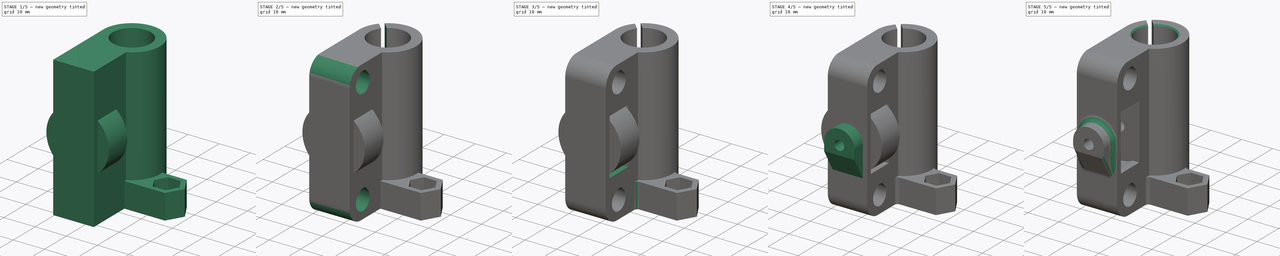
[diagram: build sequence overview — one tinted view per stage of 5, left to right]
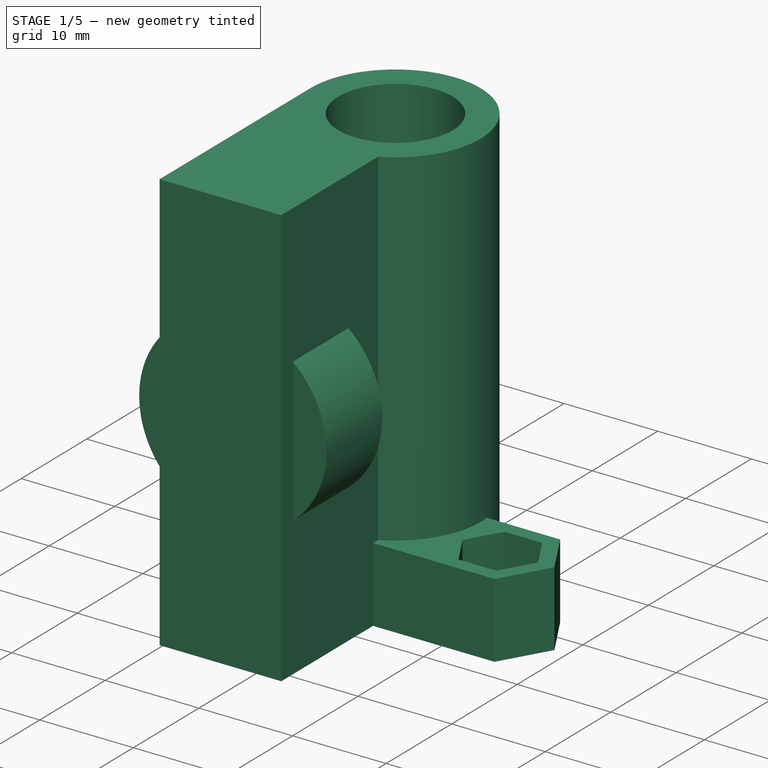
[diagram: stage 1 of 5 — iso view after this stage's code; geometry added in this stage tinted green]
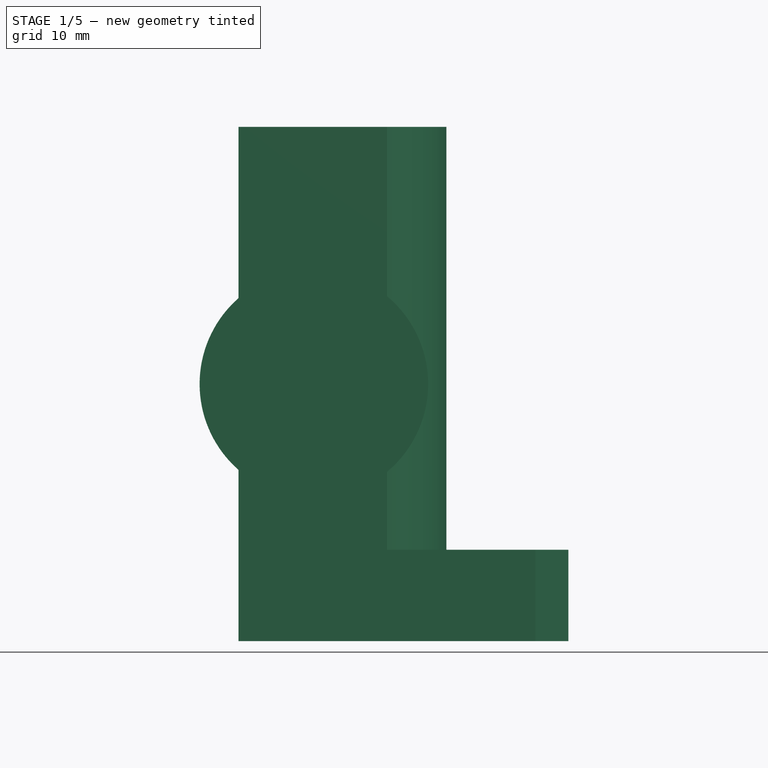
[diagram: stage 1 of 5 — front view after this stage's code; geometry added in this stage tinted green]
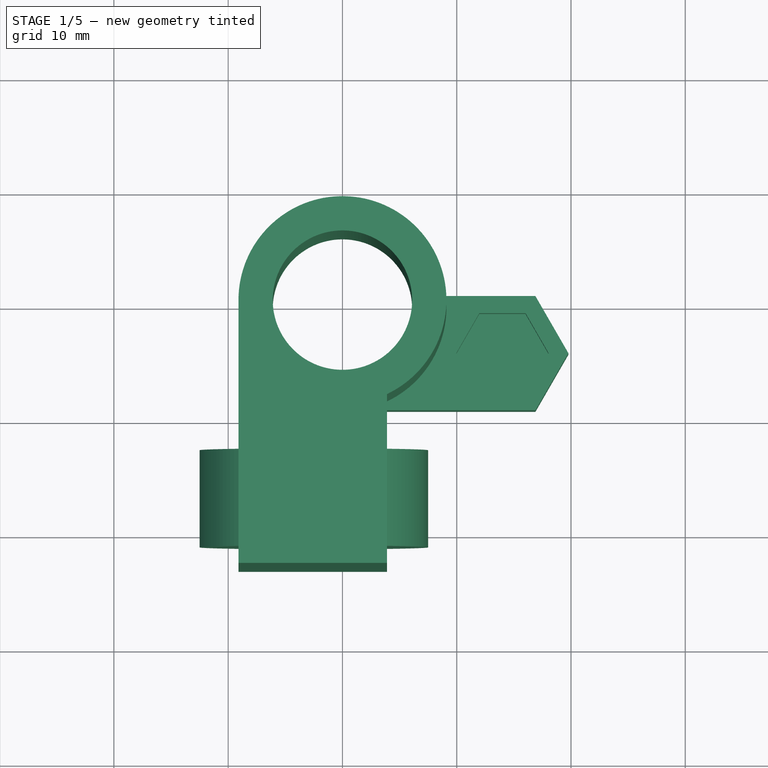
[diagram: stage 1 of 5 — top view after this stage's code; geometry added in this stage tinted green]
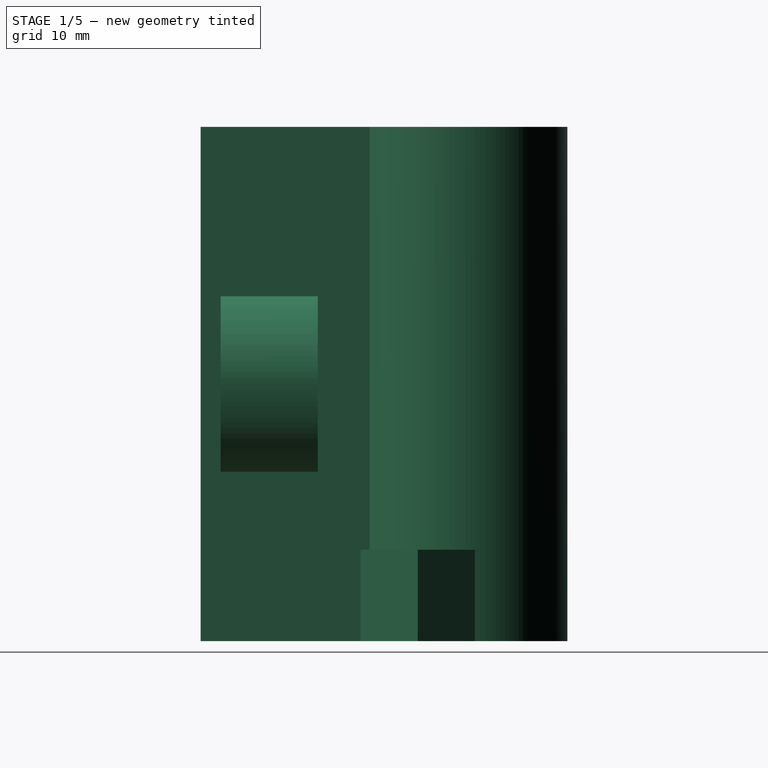
[diagram: stage 1 of 5 — right view after this stage's code; geometry added in this stage tinted green]
FCSTD DOCUMENT  (FreeCAD 0.16R6707 (Git))
Label: CarroIzq
License: CreativeCommons Attribution-ShareAlike
LicenseURL: http://creativecommons.org/licenses/by-sa/4.0/
objects: Sketcher::SketchObject×12, PartDesign::Pocket×9, PartDesign::Fillet×4, PartDesign::Pad×3, Part::MultiFuse×1, Part::Cylinder×1, Part::Cut×1, PartDesign::Chamfer×1
note: 44 computed .brp shape members not serialized (recipe doc carries the construction recipe); baked Part::Feature solids carry a one-line shape summary decoded from their .brp

FEATURE [Sketcher::SketchObject] Sketch
  sketch-geometry (5):
    g0: LineSegment StartX=3.9 StartY=-8.22192 StartZ=0 EndX=3.9 EndY=-23 EndZ=0
    g1: LineSegment StartX=3.9 StartY=-23 StartZ=0 EndX=-9.1 EndY=-23 EndZ=0
    g2: LineSegment StartX=-9.1 StartY=-23 StartZ=0 EndX=-9.1 EndY=0 EndZ=0
    g3: ArcOfCircle CenterX=0 CenterY=0 CenterZ=0 NormalX=0 NormalY=0 NormalZ=1 Radius=9.1 StartAngle=5.1553 EndAngle=9.42478
    g4: Circle CenterX=0 CenterY=0 CenterZ=0 NormalX=0 NormalY=0 NormalZ=1 Radius=6.1
  constraints (14):
    c: Coincident(g0,g1)
    c: Coincident(g1,g2)
    c: Horizontal(g1)
    c: Vertical(g0)
    c: Vertical(g2)
    c: Coincident(g3,g-1)
    c: Coincident(g3,g2)
    c: Coincident(g3,g0)
    c: Radius(g3) = 9.1
    c: PointOnObject(g2,g-1)
    c: DistanceX(g1) = -13
    c: DistanceY(g2) = 23
    c: Coincident(g4,g-1)
    c: Radius(g4) = 6.1
FEATURE [PartDesign::Pad] Pad
  Length = 45
  Length2 = 100
  Sketch = -> Sketch
  Type = 0
FEATURE [Sketcher::SketchObject] Sketch004  label="SketchBaseMotor"
  sketch-geometry (12):
    g0: ArcOfCircle CenterX=0 CenterY=0 CenterZ=0 NormalX=0 NormalY=0 NormalZ=1 Radius=8 StartAngle=4.96507 EndAngle=6.40851
    g1: LineSegment StartX=20 StartY=1 StartZ=0 EndX=20 EndY=-9 EndZ=0
    g2: LineSegment StartX=2 StartY=-9 StartZ=0 EndX=2 EndY=-7.74597 EndZ=0
    g3: LineSegment StartX=16.8868 StartY=-9 StartZ=0 EndX=19.7735 EndY=-4 EndZ=0
    g4: LineSegment StartX=19.7735 StartY=-4 StartZ=0 EndX=16.8868 EndY=1 EndZ=0
    g5: LineSegment StartX=16.8868 StartY=1 StartZ=0 EndX=11.1132 EndY=1 EndZ=0
    g6: LineSegment [constr] StartX=11.1132 StartY=1 StartZ=0 EndX=8.2265 EndY=-4 EndZ=0
    g7: LineSegment [constr] StartX=8.2265 StartY=-4 StartZ=0 EndX=11.1132 EndY=-9 EndZ=0
    g8: LineSegment StartX=11.1132 StartY=-9 StartZ=0 EndX=16.8868 EndY=-9 EndZ=0
    g9: Circle [constr] CenterX=14 CenterY=-4 CenterZ=0 NormalX=0 NormalY=0 NormalZ=1 Radius=5.7735
    g10: LineSegment StartX=7.93725 StartY=1 StartZ=0 EndX=11.1132 EndY=1 EndZ=0
    g11: LineSegment StartX=2 StartY=-9 StartZ=0 EndX=11.1132 EndY=-9 EndZ=0
  constraints (31):
    c: Coincident(g0,g-1)
    c: Vertical(g1)
    c: Coincident(g2,g0)
    c: Vertical(g2)
    c: DistanceX(g-1,g1) = 20
    c: DistanceY(g1) = -10
    c: Radius(g0) = 8
    c: DistanceY(g-1,g2) = -9
    c: DistanceX(g-1,g2) = 2
    c: Coincident(g3,g4)
    c: Coincident(g4,g5)
    c: Coincident(g5,g6)
    c: Coincident(g6,g7)
    c: Coincident(g7,g8)
    c: Coincident(g8,g3)
    c: Equal(g3, g4-g8) x5
    c: PointOnObject(g3,g9)
    c: PointOnObject(g4,g9)
    c: PointOnObject(g5,g9)
    c: PointOnObject(g6,g9)
    c: PointOnObject(g7,g9)
    c: PointOnObject(g8,g9)
    c: DistanceX(g-1,g9) = 14
    c: DistanceY(g-1,g9) = -4
    c: Horizontal(g5)
    c: DistanceY(g4,g3) = -10
    c: Coincident(g10,g0)
    c: Coincident(g10,g5)
    c: Horizontal(g10)
    c: Coincident(g11,g2)
    c: Coincident(g11,g7)
FEATURE [PartDesign::Pad] Pad001  label="BaseMotor"
  Length = 8
  Length2 = 100
  Sketch = -> Sketch004
  Type = 0
FEATURE [Sketcher::SketchObject] Sketch010
  Placement = pos=(0,0,8) rot=(0,0,1;0rad)
  Support = -> Pad001 [Face6]
  sketch-geometry (7):
    g0: LineSegment StartX=16.0207 StartY=-7.5 StartZ=0 EndX=18.0415 EndY=-4 EndZ=0
    g1: LineSegment StartX=18.0415 StartY=-4 StartZ=0 EndX=16.0207 EndY=-0.5 EndZ=0
    g2: LineSegment StartX=16.0207 StartY=-0.5 StartZ=0 EndX=11.9793 EndY=-0.5 EndZ=0
    g3: LineSegment StartX=11.9793 StartY=-0.5 StartZ=0 EndX=9.95855 EndY=-4 EndZ=0
    g4: LineSegment StartX=9.95855 StartY=-4 StartZ=0 EndX=11.9793 EndY=-7.5 EndZ=0
    g5: LineSegment StartX=11.9793 StartY=-7.5 StartZ=0 EndX=16.0207 EndY=-7.5 EndZ=0
    g6: Circle [constr] CenterX=14 CenterY=-4 CenterZ=0 NormalX=0 NormalY=0 NormalZ=1 Radius=4.04145
  constraints (17):
    c: Coincident(g0,g1)
    c: Coincident(g1,g2)
    c: Coincident(g2,g3)
    c: Coincident(g3,g4)
    c: Coincident(g4,g5)
    c: Coincident(g5,g0)
    c: Equal(g0, g1-g5) x5
    c: PointOnObject(g0,g6)
    c: PointOnObject(g1,g6)
    c: PointOnObject(g2,g6)
    c: PointOnObject(g3,g6)
    c: PointOnObject(g4,g6)
    c: PointOnObject(g5,g6)
    c: DistanceX(g-1,g6) = 14
    c: DistanceY(g-1,g6) = -4
    c: Horizontal(g2)
    c: DistanceY(g1,g0) = -7
FEATURE [PartDesign::Pocket] Pocket007
  Length = 4
  Sketch = -> Sketch010
  Type = 0
FEATURE [Part::Cylinder] Cylinder  label="Cilindro"
  Angle = 360
  Height = 8.5
  Placement = pos=(-2.5,-12.75,22.5) rot=(1,0,0;1.5708rad)
  Radius = 10
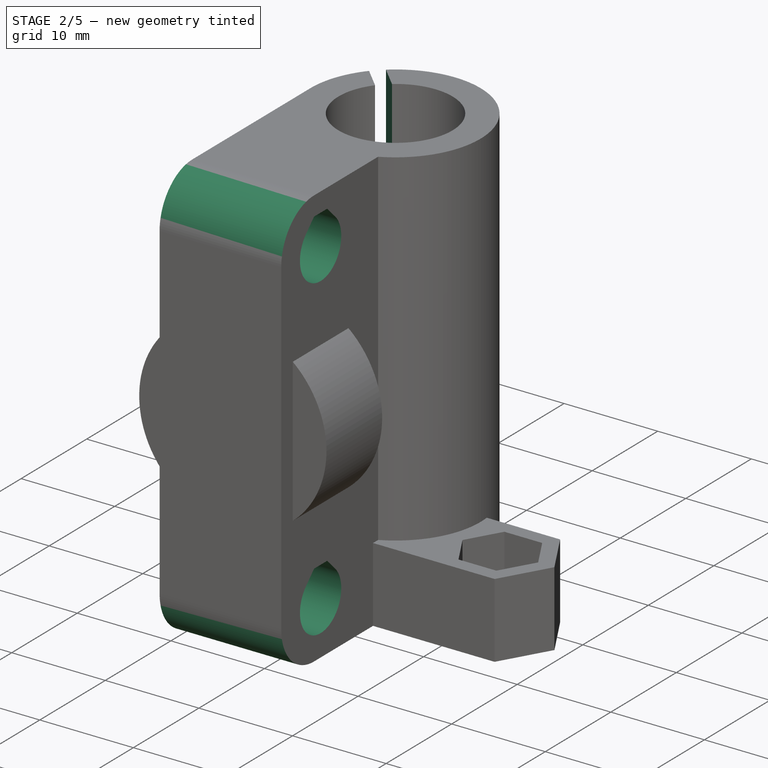
[diagram: stage 2 of 5 — iso view after this stage's code; geometry added in this stage tinted green]
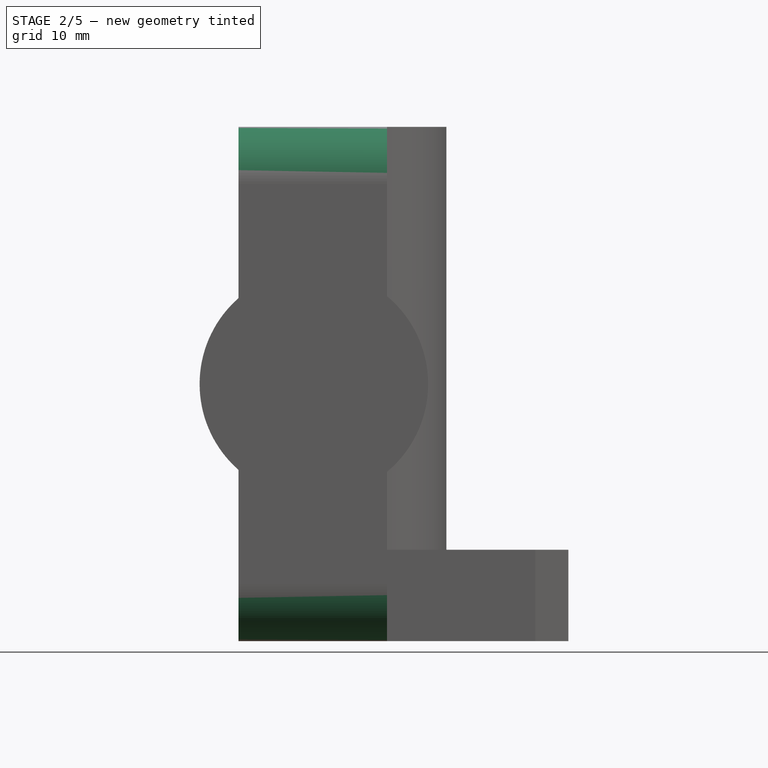
[diagram: stage 2 of 5 — front view after this stage's code; geometry added in this stage tinted green]
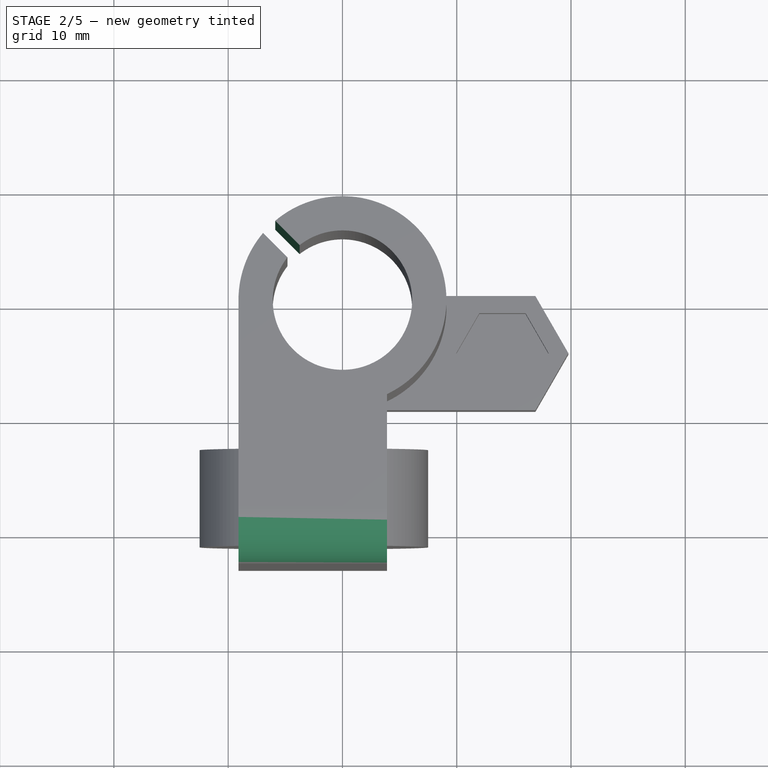
[diagram: stage 2 of 5 — top view after this stage's code; geometry added in this stage tinted green]
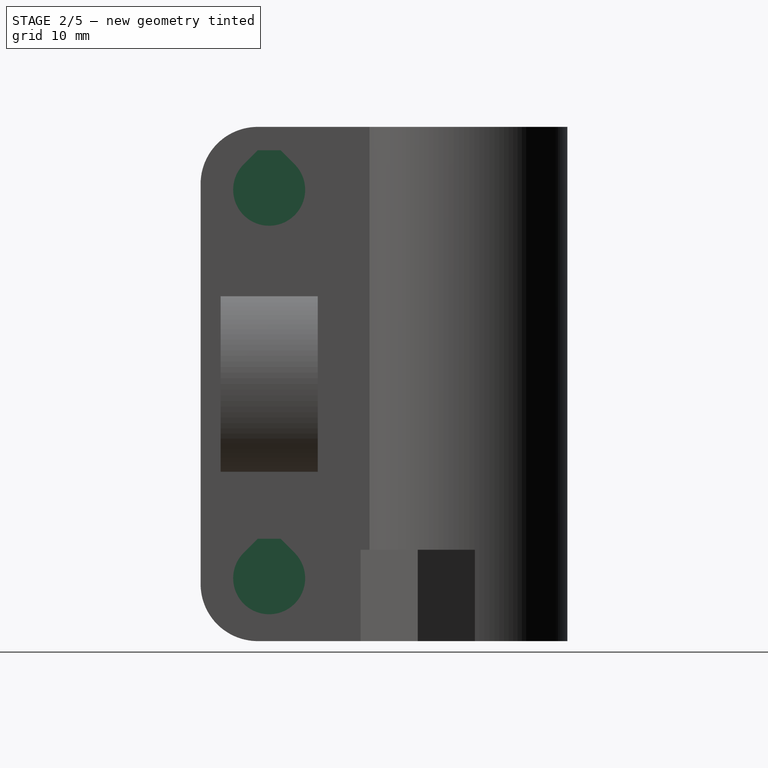
[diagram: stage 2 of 5 — right view after this stage's code; geometry added in this stage tinted green]
FEATURE [Sketcher::SketchObject] Sketch001  label="SketchTensorRodamiento"
  Placement = pos=(0,0,45) rot=(0,0,1;0rad)
  Support = -> Pad [Face7]
  sketch-geometry (6):
    g0: LineSegment StartX=-8.2685 StartY=7.20784 StartZ=0 EndX=-4.02586 EndY=2.9652 EndZ=0
    g1: LineSegment StartX=-7.20784 StartY=8.2685 StartZ=0 EndX=-2.9652 EndY=4.02586 EndZ=0
    g2: LineSegment StartX=-8.2685 StartY=7.20784 StartZ=0 EndX=-7.20784 EndY=8.2685 EndZ=0
    g3: LineSegment StartX=-4.02586 StartY=2.9652 StartZ=0 EndX=-2.9652 EndY=4.02586 EndZ=0
    g4: LineSegment [constr] StartX=-4.02586 StartY=2.9652 StartZ=0 EndX=0 EndY=0 EndZ=0
    g5: LineSegment [constr] StartX=-2.9652 StartY=4.02586 StartZ=0 EndX=0 EndY=0 EndZ=0
  constraints (16):
    c: Coincident(g2,g0)
    c: Coincident(g2,g1)
    c: Coincident(g3,g0)
    c: Coincident(g3,g1)
    c: Parallel(g0,g1)
    c: Parallel(g2,g3)
    c: Perpendicular(g2,g0)
    c: Distance(g2) = 1.5
    c: Coincident(g4,g0)
    c: Coincident(g4,g-1)
    c: Coincident(g5,g1)
    c: Coincident(g5,g-1)
    c: Equal(g4,g5)
    c: Distance(g4) = 5
    c: Distance(g1) = 6
    c: Angle(g-1,g0) = 2.35619
FEATURE [PartDesign::Pocket] Pocket  label="VaciadoTensorRodamiento"
  Length = 5
  Sketch = -> Sketch001
  Type = 1
FEATURE [Sketcher::SketchObject] Sketch002  label="SketchBarraBaja"
  Placement = pos=(3.9,0,0) rot=(0.57735,0.57735,0.57735;2.0944rad)
  Support = -> Pocket [Face1]
  sketch-geometry (4):
    g0: ArcOfCircle CenterX=-17 CenterY=5.5 CenterZ=0 NormalX=0 NormalY=0 NormalZ=1 Radius=3.15 StartAngle=2.35619 EndAngle=7.06858
    g1: LineSegment StartX=-18 StartY=8.95477 StartZ=0 EndX=-16 EndY=8.95477 EndZ=0
    g2: LineSegment StartX=-19.2274 StartY=7.72739 StartZ=0 EndX=-18 EndY=8.95477 EndZ=0
    g3: LineSegment StartX=-14.7726 StartY=7.72739 StartZ=0 EndX=-16 EndY=8.95477 EndZ=0
  constraints (13):
    c: Horizontal(g1)
    c: Coincident(g2,g0)
    c: Coincident(g2,g1)
    c: Coincident(g3,g0)
    c: Coincident(g3,g1)
    c: Radius(g0) = 3.15
    c: Tangent(g0,g2)
    c: Tangent(g0,g3)
    c: DistanceX(g1) = 2
    c: Angle(g2,g3) = 1.5708
    c: Equal(g2,g3)
    c: DistanceY(g-1,g0) = 5.5
    c: DistanceX(g-1,g0) = -17
FEATURE [PartDesign::Pocket] Pocket001  label="VaciadoBarraBaja"
  Length = 11
  Sketch = -> Sketch002
  Type = 0
FEATURE [Sketcher::SketchObject] Sketch003  label="SketchBarraAlta"
  ExternalGeometry = -> [Pocket001]
  Placement = pos=(3.9,0,0) rot=(0.57735,0.57735,0.57735;2.0944rad)
  Support = -> Pocket001 [Face1]
  sketch-geometry (4):
    g0: ArcOfCircle CenterX=-17 CenterY=39.5 CenterZ=0 NormalX=0 NormalY=0 NormalZ=1 Radius=3.15 StartAngle=2.35619 EndAngle=7.06858
    g1: LineSegment StartX=-19.2274 StartY=41.7274 StartZ=0 EndX=-18 EndY=42.9548 EndZ=0
    g2: LineSegment StartX=-18 StartY=42.9548 StartZ=0 EndX=-16 EndY=42.9548 EndZ=0
    g3: LineSegment StartX=-16 StartY=42.9548 StartZ=0 EndX=-14.7726 EndY=41.7274 EndZ=0
  constraints (12):
    c: Tangent(g0,g1) = 1.5708
    c: Coincident(g1,g2)
    c: Horizontal(g2)
    c: Coincident(g2,g3)
    c: Coincident(g3,g0)
    c: Tangent(g0,g3)
    c: Equal(g1,g3)
    c: DistanceX(g2) = 2
    c: Radius(g0) = 3.15
    c: Angle(g1,g3) = 1.5708
    c: DistanceY(g-3,g0) = 34
    c: DistanceX(g-1,g0) = -17
FEATURE [PartDesign::Pocket] Pocket002  label="VaciadoBarraAlta"
  Length = 11
  Sketch = -> Sketch003
  Type = 0
FEATURE [PartDesign::Fillet] Fillet  label="BaseComun"
  Base = -> Pocket002 [Edge23,Edge16]
  Radius = 5
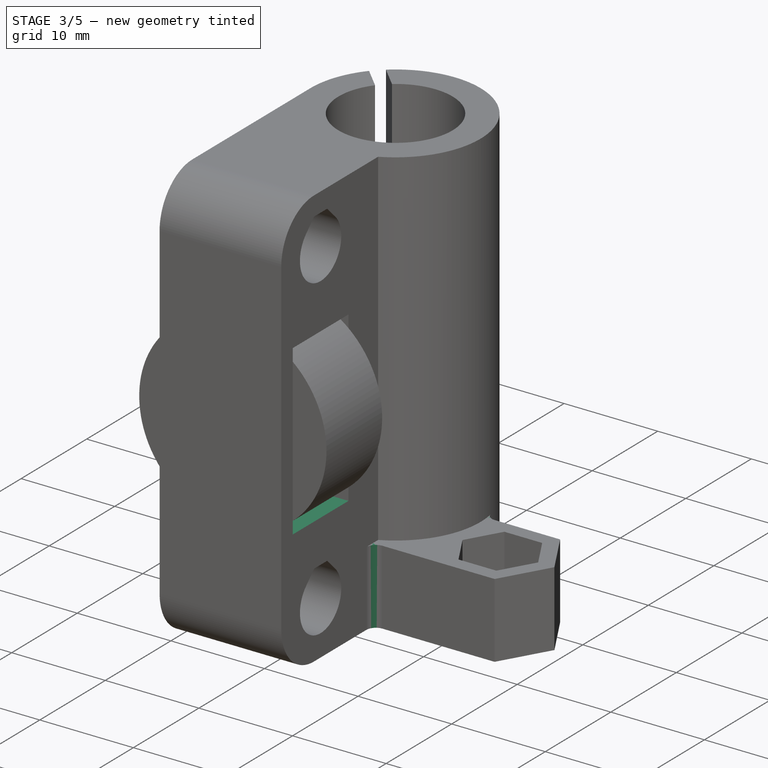
[diagram: stage 3 of 5 — iso view after this stage's code; geometry added in this stage tinted green]
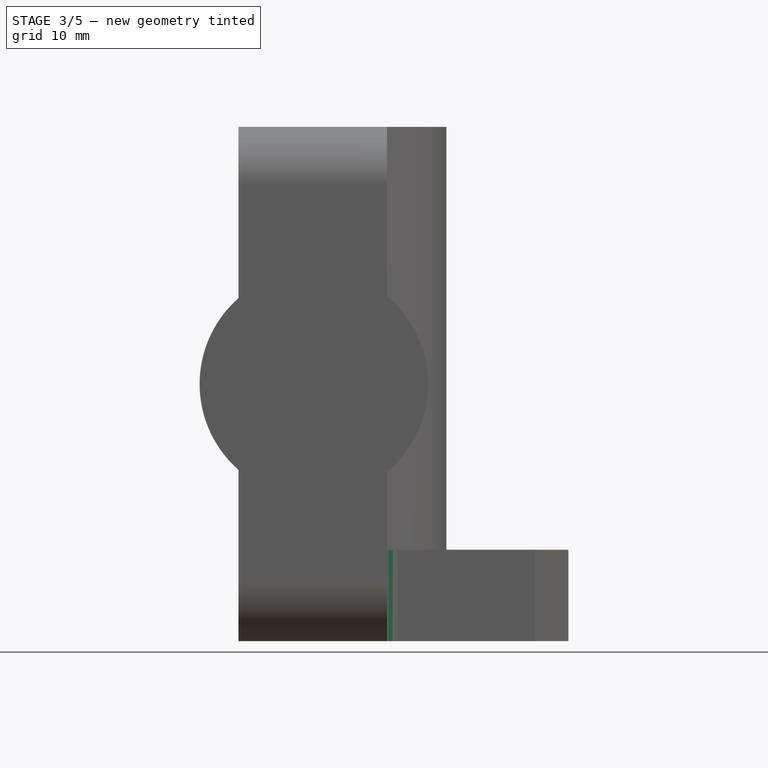
[diagram: stage 3 of 5 — front view after this stage's code; geometry added in this stage tinted green]
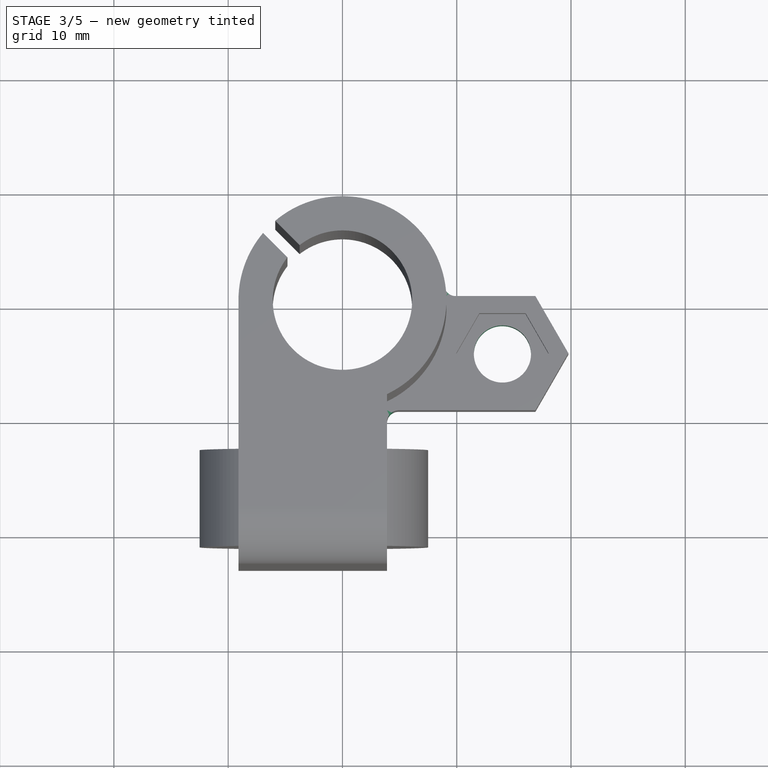
[diagram: stage 3 of 5 — top view after this stage's code; geometry added in this stage tinted green]
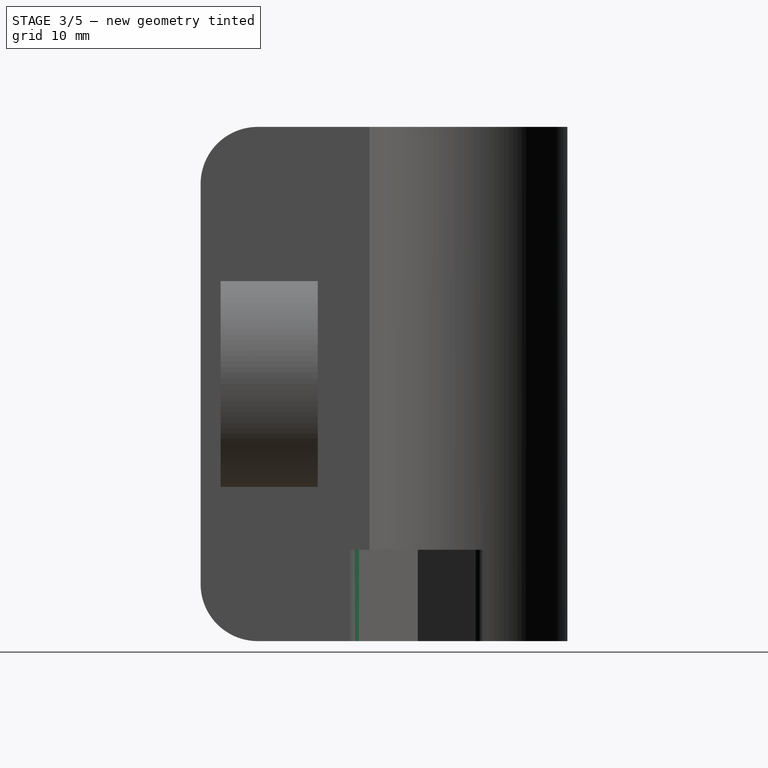
[diagram: stage 3 of 5 — right view after this stage's code; geometry added in this stage tinted green]
FEATURE [Part::MultiFuse] Fusion
  Shapes = -> [Fillet,Pocket007]
FEATURE [PartDesign::Fillet] Fillet001
  Base = -> Fusion [Edge7,Edge39]
  Radius = 1
FEATURE [Sketcher::SketchObject] Sketch011
  Placement = pos=(0,0,4) rot=(0,0,1;0rad)
  Support = -> Fillet001 [Face34]
  sketch-geometry (1):
    g0: Circle CenterX=14 CenterY=-4 CenterZ=0 NormalX=0 NormalY=0 NormalZ=1 Radius=2.5
  constraints (3):
    c: DistanceX(g-1,g0) = 14
    c: DistanceY(g-1,g0) = -4
    c: Radius(g0) = 2.5
FEATURE [PartDesign::Pocket] Pocket008
  Length = 5
  Sketch = -> Sketch011
  Type = 0
FEATURE [Sketcher::SketchObject] Sketch012
  ExternalGeometry = -> [Pocket008]
  Placement = pos=(3.9,0,0) rot=(0.57735,0.57735,0.57735;2.0944rad)
  Support = -> Pocket008 [Face10]
  sketch-geometry (5):
    g0: LineSegment StartX=-21.25 StartY=31.5 StartZ=0 EndX=-12.75 EndY=31.5 EndZ=0
    g1: LineSegment StartX=-12.75 StartY=31.5 StartZ=0 EndX=-12.75 EndY=13.5 EndZ=0
    g2: LineSegment StartX=-12.75 StartY=13.5 StartZ=0 EndX=-21.25 EndY=13.5 EndZ=0
    g3: LineSegment StartX=-21.25 StartY=13.5 StartZ=0 EndX=-21.25 EndY=31.5 EndZ=0
    g4: LineSegment [constr] StartX=-17 StartY=5.5 StartZ=0 EndX=-17 EndY=39.5 EndZ=0
  constraints (14):
    c: Coincident(g0,g1)
    c: Coincident(g1,g2)
    c: Coincident(g2,g3)
    c: Coincident(g3,g0)
    c: Horizontal(g0)
    c: Horizontal(g2)
    c: Vertical(g1)
    c: Vertical(g3)
    c: Coincident(g4,g-4)
    c: Coincident(g4,g-3)
    c: Symmetric(g0,g0,g4)
    c: DistanceX(g0) = 8.5
    c: DistanceY(g1) = -18
    c: DistanceY(g4,g2) = 8
FEATURE [PartDesign::Pocket] Pocket009
  Length = 5
  Sketch = -> Sketch012
  Type = 1
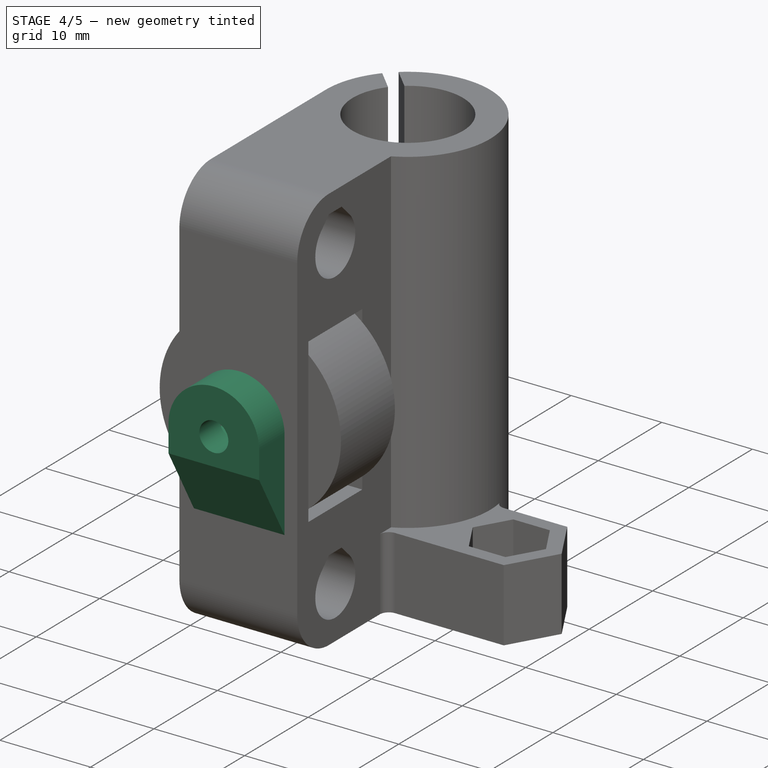
[diagram: stage 4 of 5 — iso view after this stage's code; geometry added in this stage tinted green]
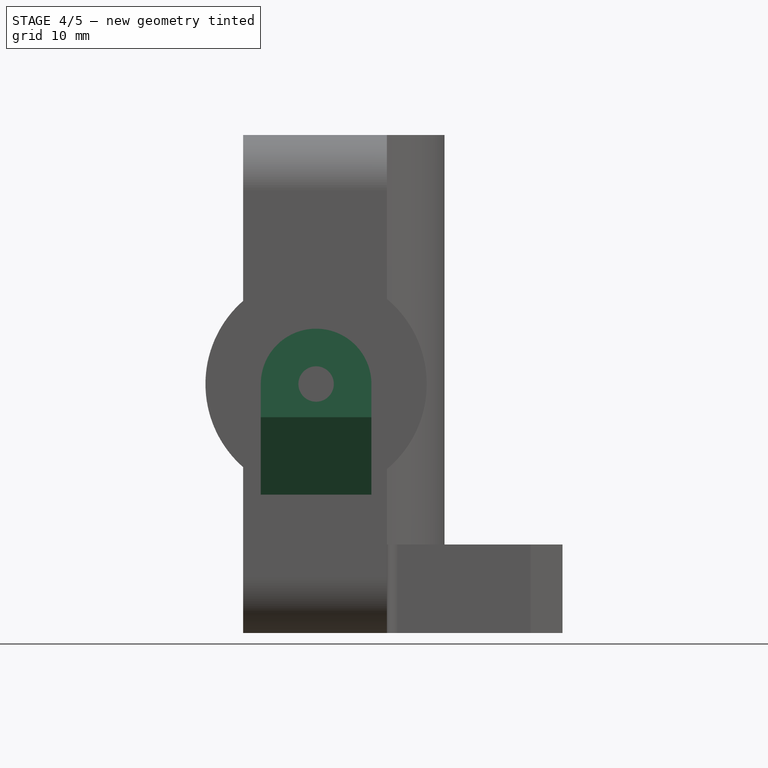
[diagram: stage 4 of 5 — front view after this stage's code; geometry added in this stage tinted green]
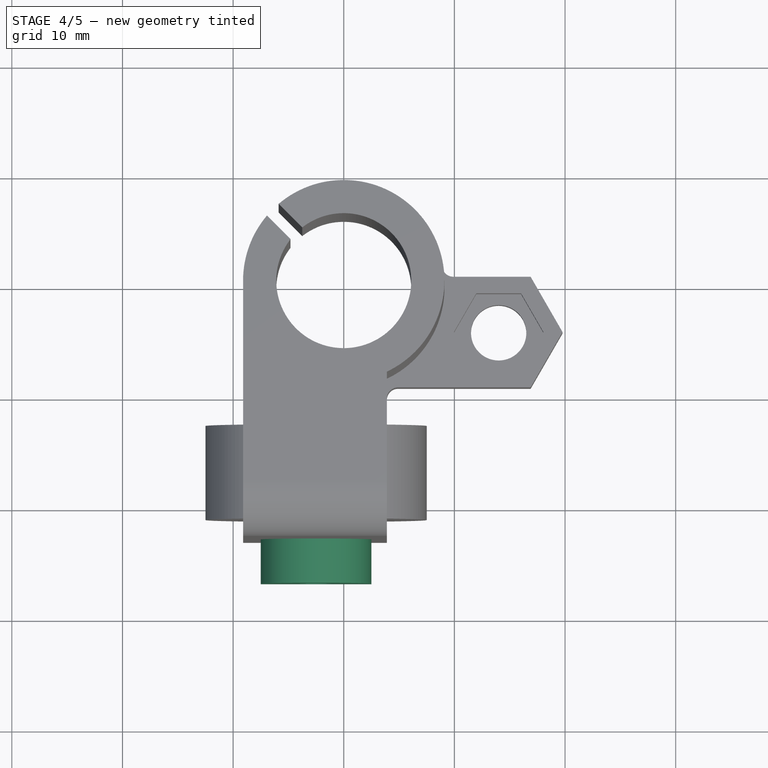
[diagram: stage 4 of 5 — top view after this stage's code; geometry added in this stage tinted green]
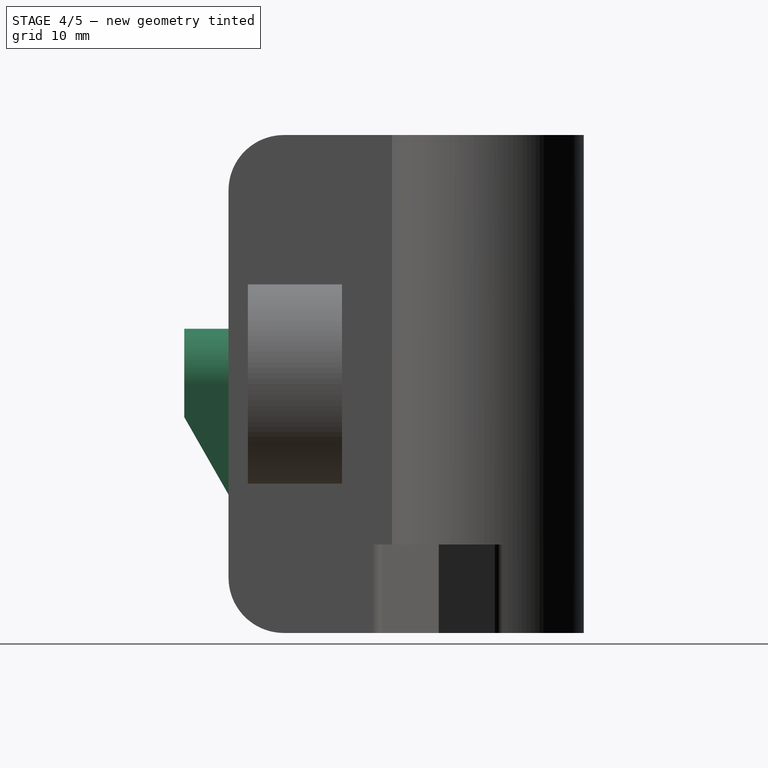
[diagram: stage 4 of 5 — right view after this stage's code; geometry added in this stage tinted green]
FEATURE [Sketcher::SketchObject] Sketch013
  Placement = pos=(0,-23,0) rot=(1,0,0;1.5708rad)
  Support = -> Pocket009 [Face25]
  sketch-geometry (4):
    g0: ArcOfCircle CenterX=-2.5 CenterY=22.5 CenterZ=0 NormalX=0 NormalY=0 NormalZ=1 Radius=5 StartAngle=6.28319 EndAngle=9.42478
    g1: LineSegment StartX=-7.5 StartY=22.5 StartZ=0 EndX=-7.5 EndY=12.5 EndZ=0
    g2: LineSegment StartX=-7.5 StartY=12.5 StartZ=0 EndX=2.5 EndY=12.5 EndZ=0
    g3: LineSegment StartX=2.5 StartY=12.5 StartZ=0 EndX=2.5 EndY=22.5 EndZ=0
  constraints (12):
    c: DistanceY(g-1,g0) = 22.5
    c: Radius(g0) = 5
    c: Tangent(g0,g1) = -1.5708
    c: Coincident(g1,g2)
    c: Horizontal(g2)
    c: Coincident(g2,g3)
    c: Coincident(g3,g0)
    c: Vertical(g3)
    c: Vertical(g1)
    c: Tangent(g3,g0)
    c: DistanceY(g1) = -10
    c: DistanceX(g-1,g0) = -2.5
FEATURE [PartDesign::Pad] Pad002
  Length = 4
  Length2 = 100
  Sketch = -> Sketch013
  Type = 0
FEATURE [Sketcher::SketchObject] Sketch014
  ExternalGeometry = -> [Pad002]
  Placement = pos=(2.5,0,0) rot=(0.57735,0.57735,0.57735;2.0944rad)
  Support = -> Pad002 [Face40]
  sketch-geometry (3):
    g0: LineSegment StartX=-23 StartY=12.5 StartZ=0 EndX=-27 EndY=19.5 EndZ=0
    g1: LineSegment StartX=-27 StartY=19.5 StartZ=0 EndX=-27 EndY=12.5 EndZ=0
    g2: LineSegment StartX=-27 StartY=12.5 StartZ=0 EndX=-23 EndY=12.5 EndZ=0
  constraints (7):
    c: Coincident(g-4,g0)
    c: PointOnObject(g0,g-3)
    c: Coincident(g0,g1)
    c: Coincident(g1,g-4)
    c: Coincident(g1,g2)
    c: Coincident(g2,g0)
    c: DistanceY(g0,g1) = -7
FEATURE [PartDesign::Pocket] Pocket010
  Length = 10
  Sketch = -> Sketch014
  Type = 0
FEATURE [Sketcher::SketchObject] Sketch015
  ExternalGeometry = -> [Pocket010]
  Placement = pos=(0,-27,0) rot=(1,0,0;1.5708rad)
  Support = -> Pocket010 [Face46]
  sketch-geometry (1):
    g0: Circle CenterX=-2.5 CenterY=22.5 CenterZ=0 NormalX=0 NormalY=0 NormalZ=1 Radius=1.6
  constraints (2):
    c: Coincident(g0,g-3)
    c: Radius(g0) = 1.6
FEATURE [PartDesign::Pocket] Pocket011
  Length = 25
  Sketch = -> Sketch015
  Type = 0
FEATURE [Sketcher::SketchObject] Sketch016
  ExternalGeometry = -> [Pocket011]
  Placement = pos=(0,-21.25,0) rot=(0,0.707107,0.707107;3.14159rad)
  Support = -> Pocket011 [Face29]
  sketch-geometry (7):
    g0: LineSegment StartX=2.5 StartY=19.3246 StartZ=0 EndX=5.25 EndY=20.9123 EndZ=0
    g1: LineSegment StartX=5.25 StartY=20.9123 StartZ=0 EndX=5.25 EndY=24.0877 EndZ=0
    g2: LineSegment StartX=5.25 StartY=24.0877 StartZ=0 EndX=2.5 EndY=25.6754 EndZ=0
    g3: LineSegment StartX=2.5 StartY=25.6754 StartZ=0 EndX=-0.25 EndY=24.0877 EndZ=0
    g4: LineSegment StartX=-0.25 StartY=24.0877 StartZ=0 EndX=-0.25 EndY=20.9123 EndZ=0
    g5: LineSegment StartX=-0.25 StartY=20.9123 StartZ=0 EndX=2.5 EndY=19.3246 EndZ=0
    g6: Circle [constr] CenterX=2.5 CenterY=22.5 CenterZ=0 NormalX=0 NormalY=0 NormalZ=1 Radius=3.17543
  constraints (16):
    c: Coincident(g0,g1)
    c: Coincident(g1,g2)
    c: Coincident(g2,g3)
    c: Coincident(g3,g4)
    c: Coincident(g4,g5)
    c: Coincident(g5,g0)
    c: Equal(g0, g1-g5) x5
    c: PointOnObject(g0,g6)
    c: PointOnObject(g1,g6)
    c: PointOnObject(g2,g6)
    c: PointOnObject(g3,g6)
    c: PointOnObject(g4,g6)
    c: PointOnObject(g5,g6)
    c: Coincident(g6,g-3)
    c: Vertical(g4)
    c: DistanceX(g4,g0) = 5.5
FEATURE [PartDesign::Pocket] Pocket012
  Length = 2.5
  Sketch = -> Sketch016
  Type = 0
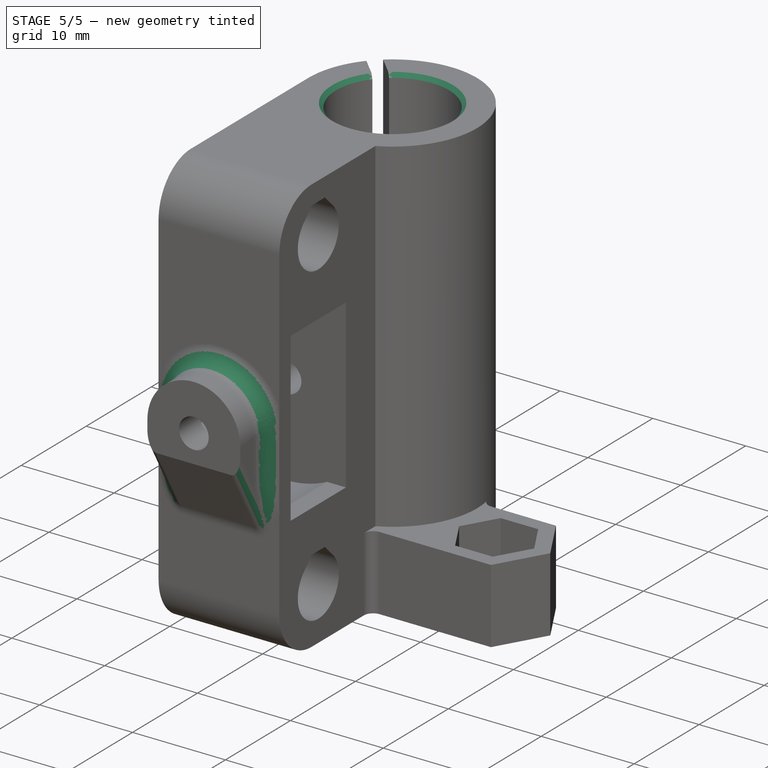
[diagram: stage 5 of 5 — iso view after this stage's code; geometry added in this stage tinted green]
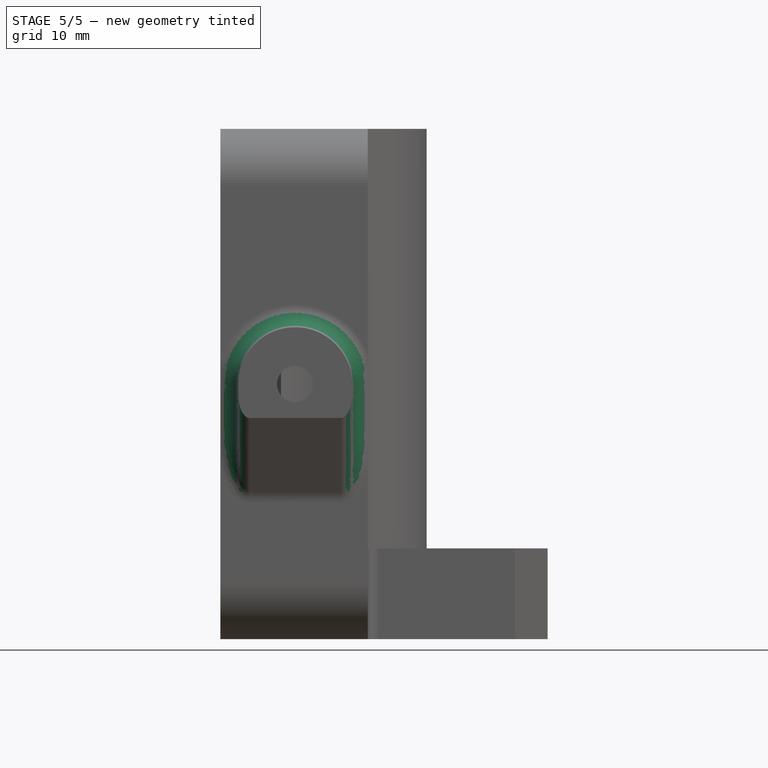
[diagram: stage 5 of 5 — front view after this stage's code; geometry added in this stage tinted green]
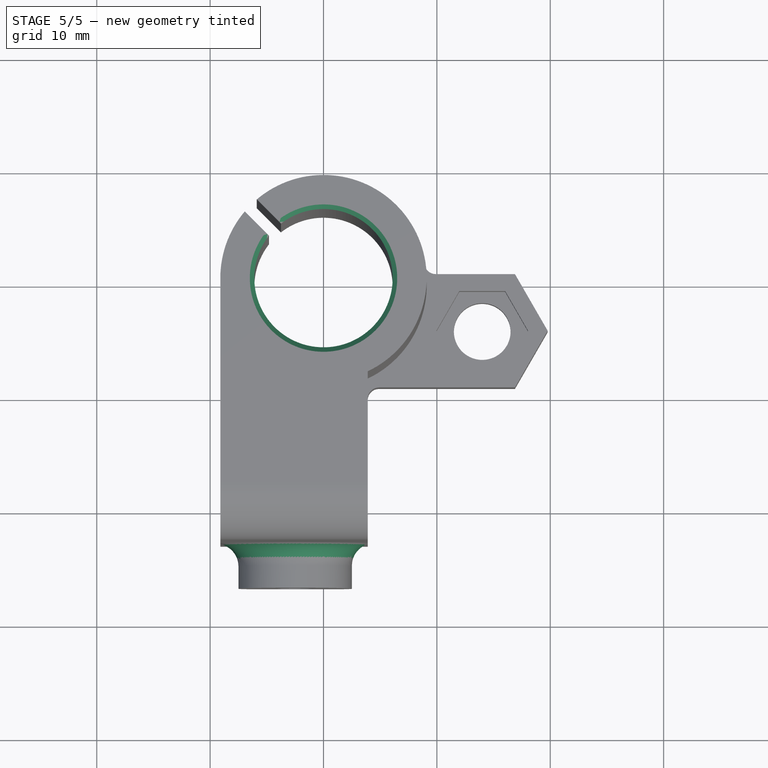
[diagram: stage 5 of 5 — top view after this stage's code; geometry added in this stage tinted green]
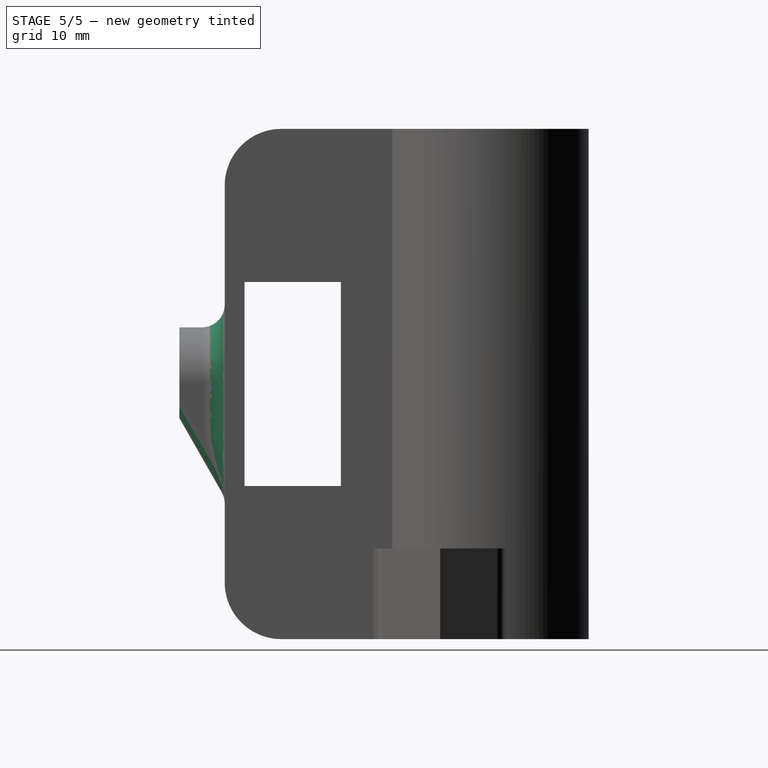
[diagram: stage 5 of 5 — right view after this stage's code; geometry added in this stage tinted green]
FEATURE [PartDesign::Fillet] Fillet002
  Base = -> Pocket012 [Edge133,Edge134]
  Radius = 1
FEATURE [PartDesign::Fillet] Fillet003
  Base = -> Fillet002 [Edge3]
  Radius = 2
FEATURE [Part::Cut] Cut
  Base = -> Fillet003
  Tool = -> Cylinder
FEATURE [PartDesign::Chamfer] Chamfer
  Base = -> Cut [Edge127,Edge125,Edge94,Edge92]
  Size = 0.4
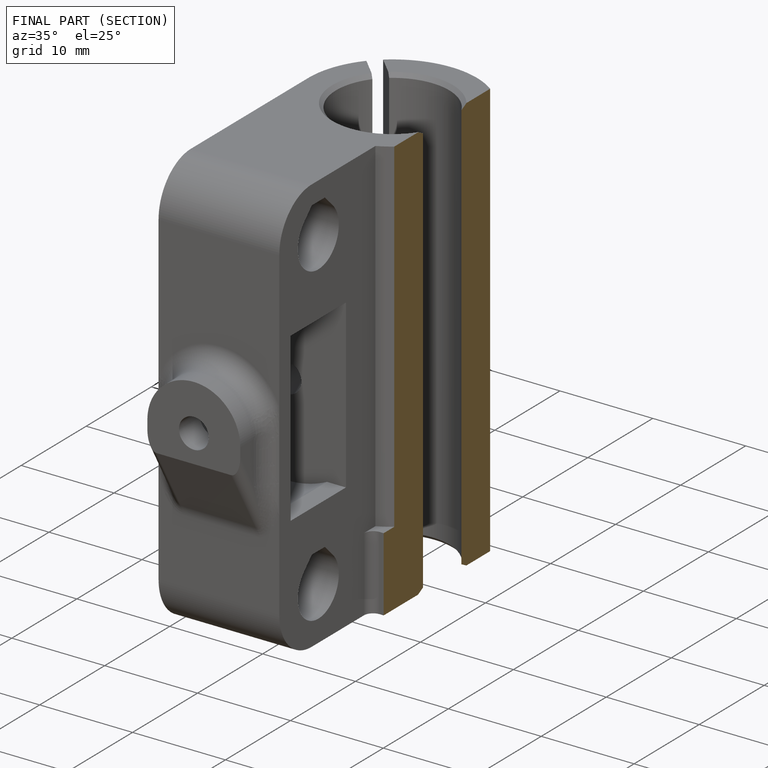
[diagram: finished part — half-section view (interior)]
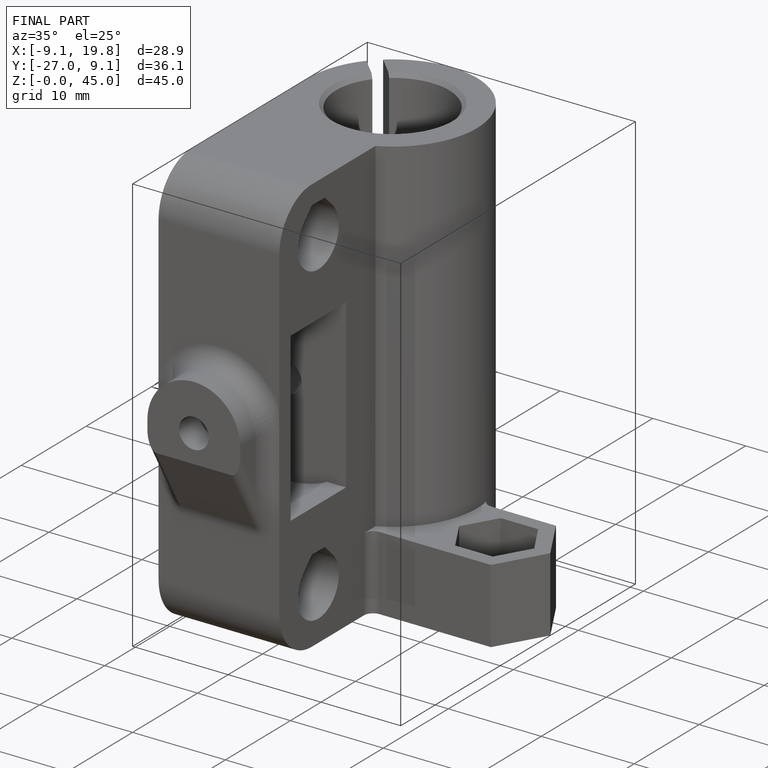
[diagram: finished part — iso view with bounding-box wireframe]
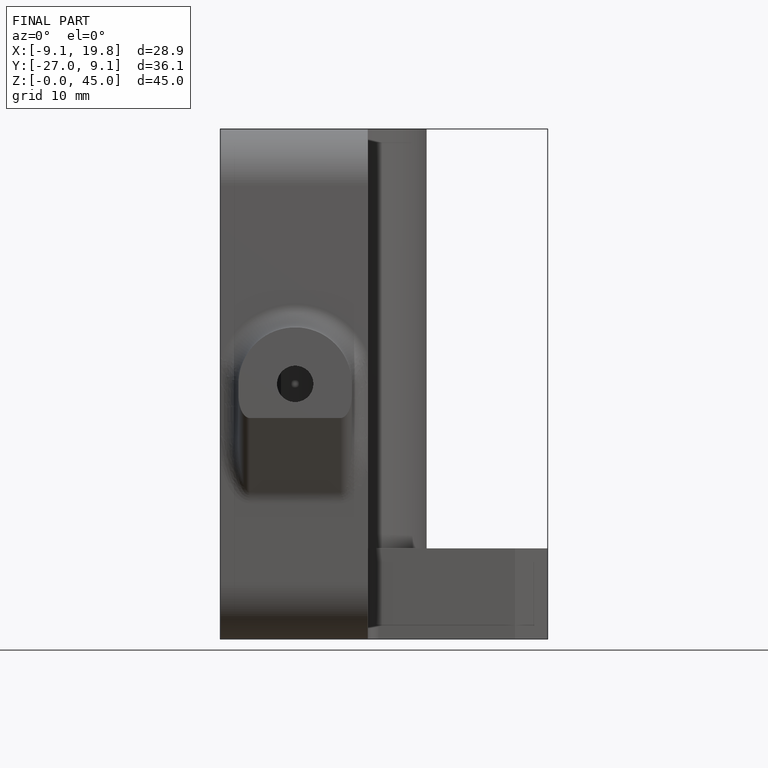
[diagram: finished part — front view with bounding-box wireframe]
